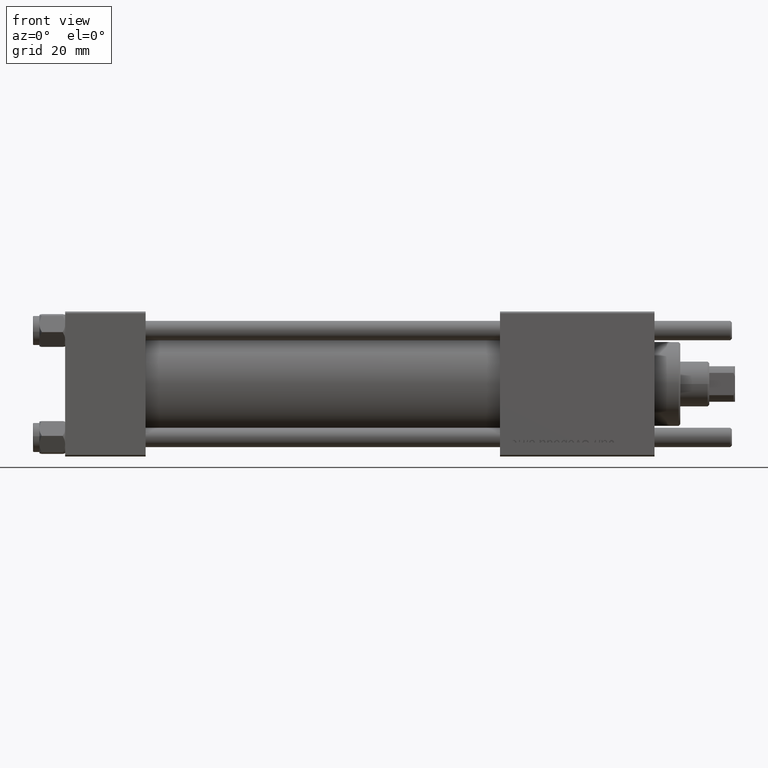
[diagram: clean part render]
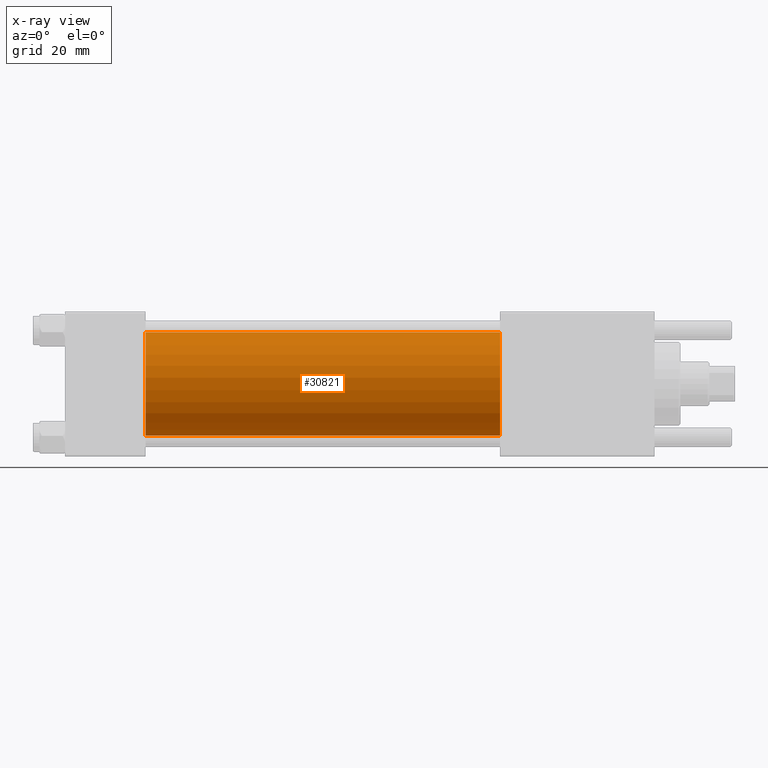
[diagram: x-ray — body ghosted, one internal face saturated and labeled with its STEP entity id]
A machine part, front view, then the same camera in x-ray: the body is ghosted and one INTERNAL B-rep face — a face not visible from any outside direction — is saturated and labeled: STEP entity #30821.
In plain terms, the highlighted cylindrical surface (partial cylindrical patch) has radius 16 mm, axis along (-1, -0, -0).
Its self-contained STEP definition (entity closure, byte-faithful):
#1646 = DIRECTION ( 'NONE',  ( 1.000000000000000000, 0.000000000000000000, 0.000000000000000000 ) ) ;
#2262 = ORIENTED_EDGE ( 'NONE', *, *, #15488, .T. ) ;
#2806 = ORIENTED_EDGE ( 'NONE', *, *, #56442, .F. ) ;
#4491 = VECTOR ( 'NONE', #36367, 1000.000000000000000 ) ;
#5299 = LINE ( 'NONE', #41224, #4491 ) ;
#6410 = EDGE_CURVE ( 'NONE', #17832, #42413, #27084, .T. ) ;
#7484 = EDGE_LOOP ( 'NONE', ( #2262, #23918, #2806, #35851 ) ) ;
#9006 = VECTOR ( 'NONE', #52938, 1000.000000000000000 ) ;
#9311 = CARTESIAN_POINT ( 'NONE',  ( 135.0000000000000000, -6.426503353294456087E-16, -16.00000000000000000 ) ) ;
#9717 = DIRECTION ( 'NONE',  ( 1.000000000000000000, 0.000000000000000000, 0.000000000000000000 ) ) ;
#10506 = EDGE_CURVE ( 'NONE', #21190, #20093, #5299, .T. ) ;
#14037 = CARTESIAN_POINT ( 'NONE',  ( 135.0000000000000000, -2.602085213965210642E-15, 0.000000000000000000 ) ) ;
#15488 = EDGE_CURVE ( 'NONE', #21190, #17832, #35913, .T. ) ;
#16439 = CIRCLE ( 'NONE', #54067, 16.00000000000000000 ) ;
#17548 = AXIS2_PLACEMENT_3D ( 'NONE', #14037, #9717, #52256 ) ;
#17808 = CARTESIAN_POINT ( 'NONE',  ( 135.0000000000000000, -2.602085213965210642E-15, 0.000000000000000000 ) ) ;
#17832 = VERTEX_POINT ( 'NONE', #9311 ) ;
#20018 = CARTESIAN_POINT ( 'NONE',  ( 25.00000000000000000, -2.602085213965210642E-15, 16.00000000000000000 ) ) ;
#20093 = VERTEX_POINT ( 'NONE', #20018 ) ;
#21190 = VERTEX_POINT ( 'NONE', #23776 ) ;
#21833 = DIRECTION ( 'NONE',  ( 0.000000000000000000, 0.000000000000000000, 1.000000000000000000 ) ) ;
#22683 = DIRECTION ( 'NONE',  ( -1.000000000000000000, -0.000000000000000000, -0.000000000000000000 ) ) ;
#23776 = CARTESIAN_POINT ( 'NONE',  ( 135.0000000000000000, -2.602085213965210642E-15, 16.00000000000000000 ) ) ;
#23918 = ORIENTED_EDGE ( 'NONE', *, *, #6410, .T. ) ;
#27084 = LINE ( 'NONE', #27380, #9006 ) ;
#27380 = CARTESIAN_POINT ( 'NONE',  ( 135.0000000000000000, -6.426503353294456087E-16, -16.00000000000000000 ) ) ;
#30821 = ADVANCED_FACE ( 'NONE', ( #56595 ), #44254, .F. ) ;
#35851 = ORIENTED_EDGE ( 'NONE', *, *, #10506, .F. ) ;
#35913 = CIRCLE ( 'NONE', #17548, 16.00000000000000000 ) ;
#36367 = DIRECTION ( 'NONE',  ( -1.000000000000000000, -0.000000000000000000, -0.000000000000000000 ) ) ;
#41224 = CARTESIAN_POINT ( 'NONE',  ( 135.0000000000000000, -2.602085213965210642E-15, 16.00000000000000000 ) ) ;
#42413 = VERTEX_POINT ( 'NONE', #50067 ) ;
#44254 = CYLINDRICAL_SURFACE ( 'NONE', #50081, 16.00000000000000000 ) ;
#49362 = CARTESIAN_POINT ( 'NONE',  ( 25.00000000000000000, -2.602085213965210642E-15, 0.000000000000000000 ) ) ;
#50067 = CARTESIAN_POINT ( 'NONE',  ( 25.00000000000000000, -6.426503353294456087E-16, -16.00000000000000000 ) ) ;
#50081 = AXIS2_PLACEMENT_3D ( 'NONE', #17808, #22683, #21833 ) ;
#50190 = DIRECTION ( 'NONE',  ( 0.000000000000000000, 0.000000000000000000, -1.000000000000000000 ) ) ;
#52256 = DIRECTION ( 'NONE',  ( 0.000000000000000000, 0.000000000000000000, -1.000000000000000000 ) ) ;
#52938 = DIRECTION ( 'NONE',  ( -1.000000000000000000, -0.000000000000000000, -0.000000000000000000 ) ) ;
#54067 = AXIS2_PLACEMENT_3D ( 'NONE', #49362, #1646, #50190 ) ;
#56442 = EDGE_CURVE ( 'NONE', #20093, #42413, #16439, .T. ) ;
#56595 = FACE_OUTER_BOUND ( 'NONE', #7484, .T. ) ;